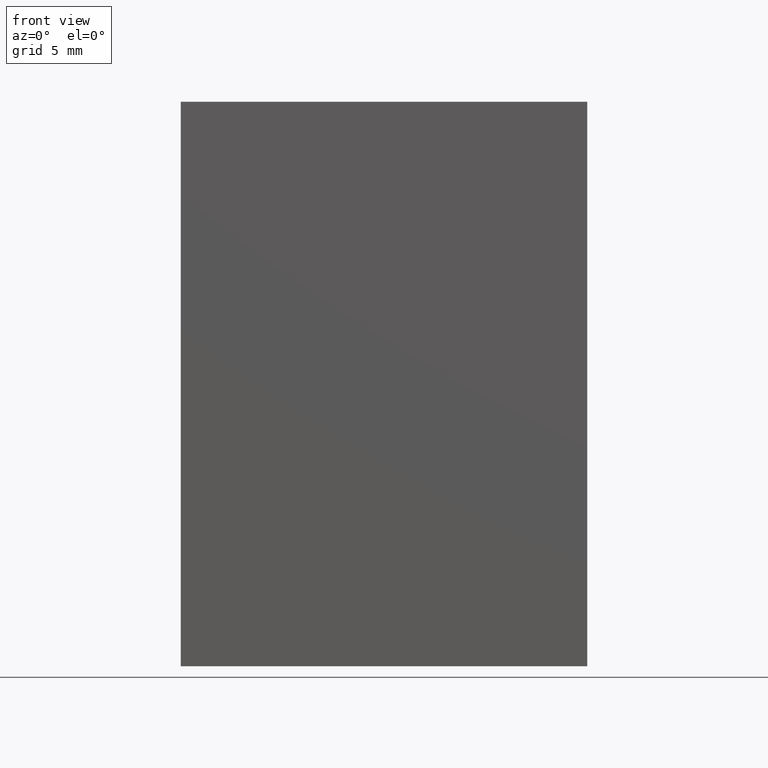
[diagram: clean part render]
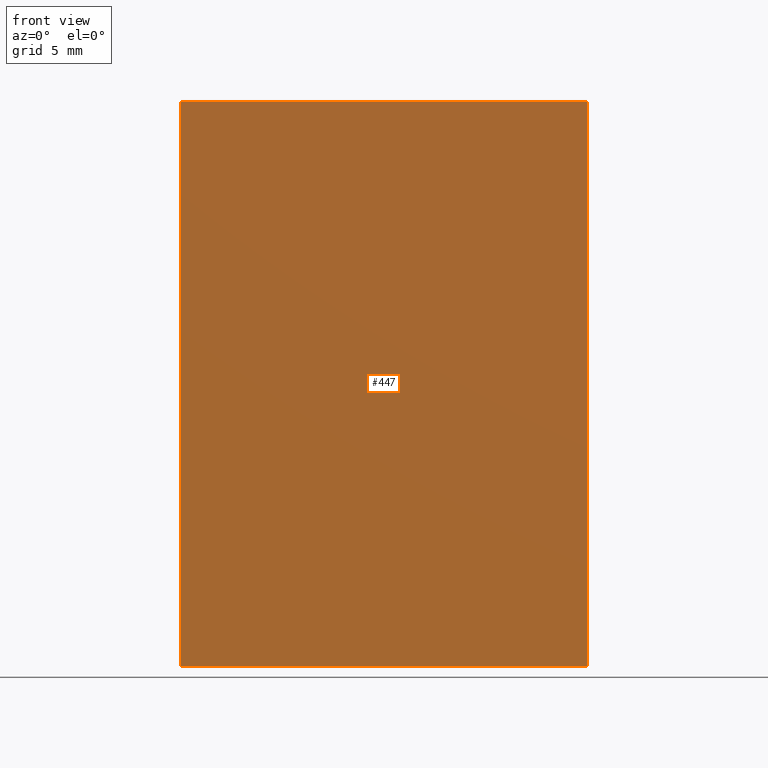
[diagram: same view with one face highlighted and labeled with its STEP entity id]
A machine part, front view. The second image highlights one B-rep face of the part: STEP entity #447.
In plain terms, the highlighted planar face has unit normal (0, -1, 0).
Its self-contained STEP definition (entity closure, byte-faithful):
#50=PLANE('',#548);
#74=FACE_OUTER_BOUND('',#105,.T.);
#105=EDGE_LOOP('',(#409,#410,#411,#412));
#148=LINE('',#787,#195);
#151=LINE('',#793,#198);
#153=LINE('',#796,#200);
#154=LINE('',#797,#201);
#195=VECTOR('',#659,10.);
#198=VECTOR('',#664,10.);
#200=VECTOR('',#668,10.);
#201=VECTOR('',#669,10.);
#246=VERTEX_POINT('',#784);
#247=VERTEX_POINT('',#786);
#248=VERTEX_POINT('',#790);
#249=VERTEX_POINT('',#792);
#300=EDGE_CURVE('',#247,#246,#148,.T.);
#303=EDGE_CURVE('',#248,#249,#151,.T.);
#305=EDGE_CURVE('',#248,#247,#153,.T.);
#306=EDGE_CURVE('',#249,#246,#154,.T.);
#409=ORIENTED_EDGE('',*,*,#305,.T.);
#410=ORIENTED_EDGE('',*,*,#300,.T.);
#411=ORIENTED_EDGE('',*,*,#306,.F.);
#412=ORIENTED_EDGE('',*,*,#303,.F.);
#447=ADVANCED_FACE('',(#74),#50,.T.);
#548=AXIS2_PLACEMENT_3D('',#795,#666,#667);
#659=DIRECTION('',(0.,0.,1.));
#664=DIRECTION('',(0.,0.,1.));
#666=DIRECTION('center_axis',(3.08395284618099E-16,-1.,0.));
#667=DIRECTION('ref_axis',(1.,3.08395284618099E-16,0.));
#668=DIRECTION('',(1.,3.08395284618099E-16,0.));
#669=DIRECTION('',(1.,3.08395284618099E-16,0.));
#784=CARTESIAN_POINT('',(9.,-9.99999999999999,25.));
#786=CARTESIAN_POINT('',(9.,-9.99999999999999,0.));
#787=CARTESIAN_POINT('',(9.,-9.99999999999999,0.));
#790=CARTESIAN_POINT('',(-9.,-10.,0.));
#792=CARTESIAN_POINT('',(-9.,-10.,25.));
#793=CARTESIAN_POINT('',(-9.,-10.,0.));
#795=CARTESIAN_POINT('Origin',(-9.,-10.,0.));
#796=CARTESIAN_POINT('',(-9.,-10.,0.));
#797=CARTESIAN_POINT('',(-9.,-10.,25.));